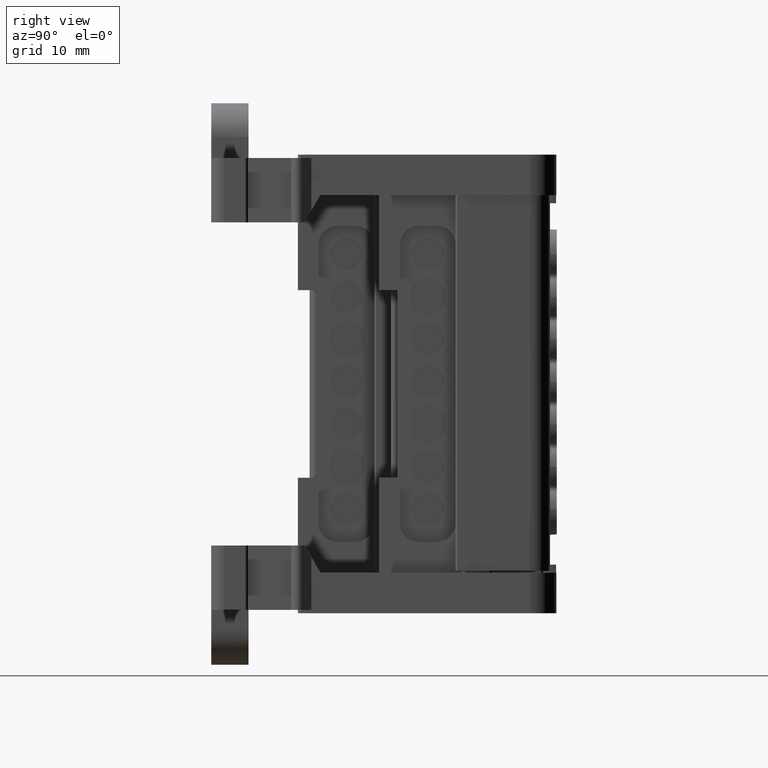
[diagram: clean part render]
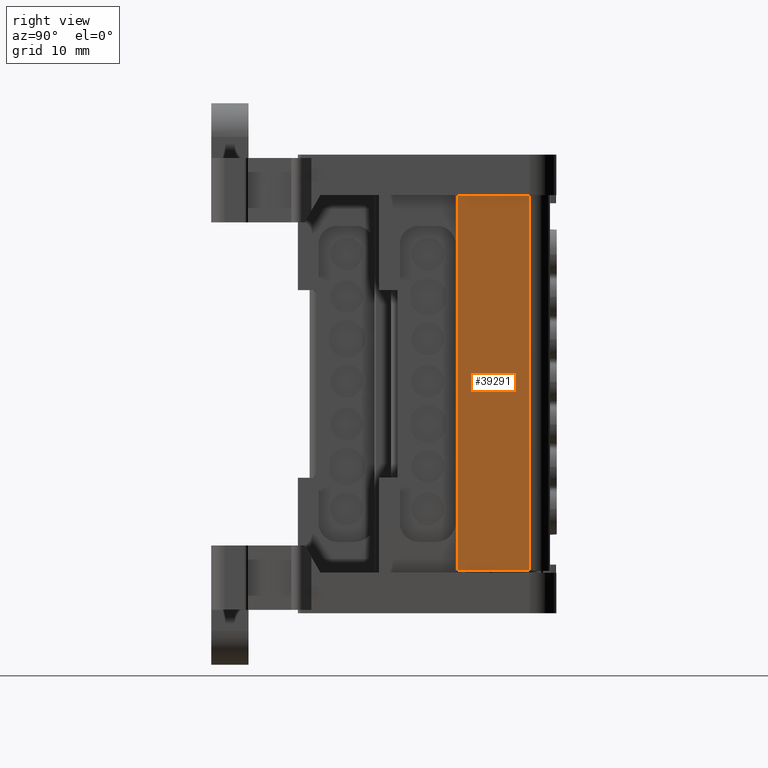
[diagram: same view with one face highlighted and labeled with its STEP entity id]
A machine part, right view. The second image highlights one B-rep face of the part: STEP entity #39291.
In plain terms, the highlighted planar face has unit normal (0.9998, 0.0175, -0).
Its self-contained STEP definition (entity closure, byte-faithful):
#12283 = ORIENTED_EDGE ( 'NONE', *, *, #16583, .T. ) ;
#12301 = ORIENTED_EDGE ( 'NONE', *, *, #16771, .T. ) ;
#12332 = ORIENTED_EDGE ( 'NONE', *, *, #16630, .T. ) ;
#12456 = ORIENTED_EDGE ( 'NONE', *, *, #39548, .T. ) ;
#16583 = EDGE_CURVE ( 'NONE', #26596, #26769, #51154, .T. ) ;
#16630 = EDGE_CURVE ( 'NONE', #26769, #26540, #38229, .T. ) ;
#16771 = EDGE_CURVE ( 'NONE', #26551, #26596, #50368, .T. ) ;
#26540 = VERTEX_POINT ( 'NONE', #54530 ) ;
#26551 = VERTEX_POINT ( 'NONE', #54507 ) ;
#26596 = VERTEX_POINT ( 'NONE', #54578 ) ;
#26769 = VERTEX_POINT ( 'NONE', #54687 ) ;
#38229 = B_SPLINE_CURVE_WITH_KNOTS ( 'NONE', 3,
 ( #51277, #51352, #51347, #51279 ),
 .UNSPECIFIED., .F., .F.,
 ( 4, 4 ),
 ( 0.0000000000000000000, 1.000000000000000000 ),
 .UNSPECIFIED. ) ;
#39291 = ADVANCED_FACE ( 'NONE', ( #59454 ), #59436, .T. ) ;
#39548 = EDGE_CURVE ( 'NONE', #26540, #26551, #60854, .T. ) ;
#44241 = VECTOR ( 'NONE', #60953, 1000.000000000000000 ) ;
#44916 = VECTOR ( 'NONE', #51130, 1000.000000000000000 ) ;
#44968 = VECTOR ( 'NONE', #50372, 1000.000000000000100 ) ;
#45178 = AXIS2_PLACEMENT_3D ( 'NONE', #59439, #59445, #59446 ) ;
#50368 = LINE ( 'NONE', #50369, #44968 ) ;
#50369 = CARTESIAN_POINT ( 'NONE',  ( -27.14618612244521900, 34.92938642163448300, -35.81898586028817300 ) ) ;
#50372 = DIRECTION ( 'NONE',  ( -0.01745240643726309700, 0.9998476951563914900, 0.0000000000000000000 ) ) ;
#51130 = DIRECTION ( 'NONE',  ( 5.802200285984707700E-013, 1.012777827182672200E-014, 1.000000000000000000 ) ) ;
#51154 = LINE ( 'NONE', #51169, #44916 ) ;
#51169 = CARTESIAN_POINT ( 'NONE',  ( -27.33177483575436300, 45.56175669123904700, 114.8334854718341100 ) ) ;
#51277 = CARTESIAN_POINT ( 'NONE',  ( -27.33177483581008400, 45.56175669123767600, 19.47218928989188300 ) ) ;
#51279 = CARTESIAN_POINT ( 'NONE',  ( -27.14618612241239500, 34.92938642163498700, 19.47218928989221400 ) ) ;
#51347 = CARTESIAN_POINT ( 'NONE',  ( -27.20804902687865800, 38.47350984483615100, 19.47218928989194400 ) ) ;
#51352 = CARTESIAN_POINT ( 'NONE',  ( -27.26991193134417600, 42.01763326803710900, 19.47218928989194400 ) ) ;
#54507 = CARTESIAN_POINT ( 'NONE',  ( -27.14618612244458600, 34.92938642163485200, -35.81898586028815900 ) ) ;
#54530 = CARTESIAN_POINT ( 'NONE',  ( -27.14618612241239500, 34.92938642163498700, 19.47218928989221400 ) ) ;
#54578 = CARTESIAN_POINT ( 'NONE',  ( -27.33177483584219300, 45.56175669123770400, -35.81898586028808000 ) ) ;
#54687 = CARTESIAN_POINT ( 'NONE',  ( -27.33177483581008400, 45.56175669123767600, 19.47218928989188300 ) ) ;
#59436 = PLANE ( 'NONE',  #45178 ) ;
#59439 = CARTESIAN_POINT ( 'NONE',  ( -27.14618612235780800, 34.92938642163601100, 114.8334854718341100 ) ) ;
#59445 = DIRECTION ( 'NONE',  ( 0.9998476951563916000, 0.01745240643726310100, -5.803084123804630800E-013 ) ) ;
#59446 = DIRECTION ( 'NONE',  ( -0.01745240643726309700, 0.9998476951563914900, 0.0000000000000000000 ) ) ;
#59454 = FACE_OUTER_BOUND ( 'NONE', #67607, .T. ) ;
#60854 = LINE ( 'NONE', #60882, #44241 ) ;
#60882 = CARTESIAN_POINT ( 'NONE',  ( -27.14618612235781100, 34.92938642163614600, 114.8334854718341100 ) ) ;
#60953 = DIRECTION ( 'NONE',  ( -5.802200285984707700E-013, -1.012777827182672200E-014, -1.000000000000000000 ) ) ;
#67607 = EDGE_LOOP ( 'NONE', ( #12456, #12301, #12283, #12332 ) ) ;